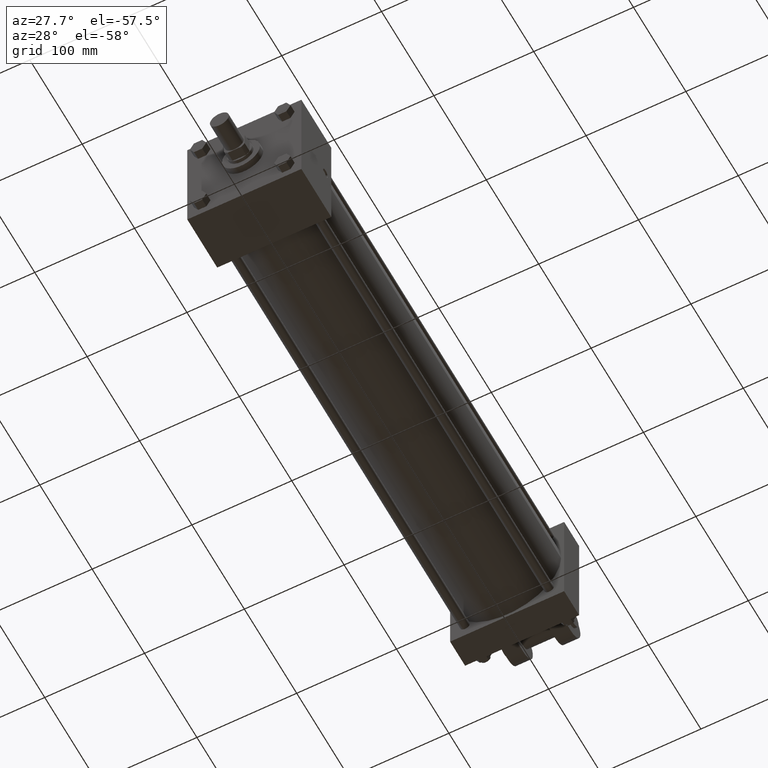
[diagram: clean part render]
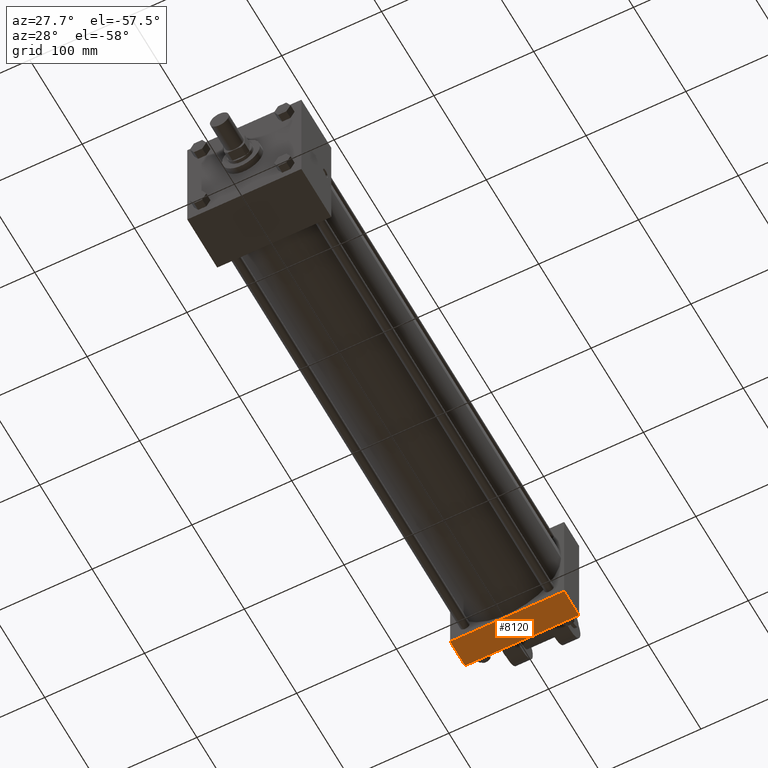
[diagram: same view with one face highlighted and labeled with its STEP entity id]
A machine part, auxiliary view. The second image highlights one B-rep face of the part: STEP entity #8120.
In plain terms, the highlighted planar face has unit normal (0, 0, -1).
Its self-contained STEP definition (entity closure, byte-faithful):
#5751=EDGE_CURVE('',#5757,#5757,#5752,.T.);
#5752=CIRCLE('',#5753,4.365625000E+000);
#5753=AXIS2_PLACEMENT_3D('',#5754,#5755,#5756);
#5754=CARTESIAN_POINT('',(0.000000000E+000,5.318125000E+002,-5.715000000E+001));
#5755=DIRECTION('',(0.0E+000,0.0E+000,1.0E+000));
#5756=DIRECTION('',(0.0E+000,1.0E+000,0.0E+000));
#5757=VERTEX_POINT('',#5758);
#5758=CARTESIAN_POINT('',(0.000000000E+000,5.361781250E+002,-5.715000000E+001));
#6057=VERTEX_POINT('',#6059);
#6059=CARTESIAN_POINT('',(5.715000000E+001,5.492750000E+002,-5.715000000E+001));
#6061=EDGE_CURVE('',#6066,#6057,#6062,.T.);
#6062=LINE('',#6063,#6064);
#6063=CARTESIAN_POINT('',(-5.715000000E+001,5.492750000E+002,-5.715000000E+001));
#6064=VECTOR('',#6065,1.0E+000);
#6065=DIRECTION('',(1.0E+000,0.0E+000,0.0E+000));
#6066=VERTEX_POINT('',#6067);
#6067=CARTESIAN_POINT('',(-5.715000000E+001,5.492750000E+002,-5.715000000E+001));
#6094=EDGE_CURVE('',#6066,#6186,#6095,.T.);
#6095=LINE('',#6096,#6097);
#6096=CARTESIAN_POINT('',(-5.715000000E+001,5.492750000E+002,-5.715000000E+001));
#6097=VECTOR('',#6098,1.0E+000);
#6098=DIRECTION('',(0.0E+000,-1.0E+000,0.0E+000));
#6137=EDGE_CURVE('',#6057,#6187,#6138,.T.);
#6138=LINE('',#6139,#6140);
#6139=CARTESIAN_POINT('',(5.715000000E+001,5.492750000E+002,-5.715000000E+001));
#6140=VECTOR('',#6141,1.0E+000);
#6141=DIRECTION('',(0.0E+000,-1.0E+000,0.0E+000));
#6147=FACE_OUTER_BOUND('',#6149,.T.);
#6148=FACE_BOUND('',#6150,.T.);
#6149=EDGE_LOOP('',(#6151));
#6150=EDGE_LOOP('',(#6152,#6153,#6154,#6155));
#6151=ORIENTED_EDGE('',*,*,#5751,.T.);
#6152=ORIENTED_EDGE('',*,*,#6137,.T.);
#6153=ORIENTED_EDGE('',*,*,#6181,.F.);
#6154=ORIENTED_EDGE('',*,*,#6094,.F.);
#6155=ORIENTED_EDGE('',*,*,#6061,.T.);
#6156=PLANE('',#6157);
#6157=AXIS2_PLACEMENT_3D('',#6158,#6159,#6160);
#6158=CARTESIAN_POINT('',(-5.715000000E+001,5.492750000E+002,-5.715000000E+001));
#6159=DIRECTION('',(0.0E+000,0.0E+000,-1.0E+000));
#6160=DIRECTION('',(-1.0E+000,0.0E+000,0.0E+000));
#6181=EDGE_CURVE('',#6186,#6187,#6182,.T.);
#6182=LINE('',#6183,#6184);
#6183=CARTESIAN_POINT('',(-5.715000000E+001,5.207000000E+002,-5.715000000E+001));
#6184=VECTOR('',#6185,1.0E+000);
#6185=DIRECTION('',(1.0E+000,0.0E+000,0.0E+000));
#6186=VERTEX_POINT('',#6188);
#6187=VERTEX_POINT('',#6189);
#6188=CARTESIAN_POINT('',(-5.715000000E+001,5.207000000E+002,-5.715000000E+001));
#6189=CARTESIAN_POINT('',(5.715000000E+001,5.207000000E+002,-5.715000000E+001));
#8120=ADVANCED_FACE('',(#6147,#6148),#6156,.T.);